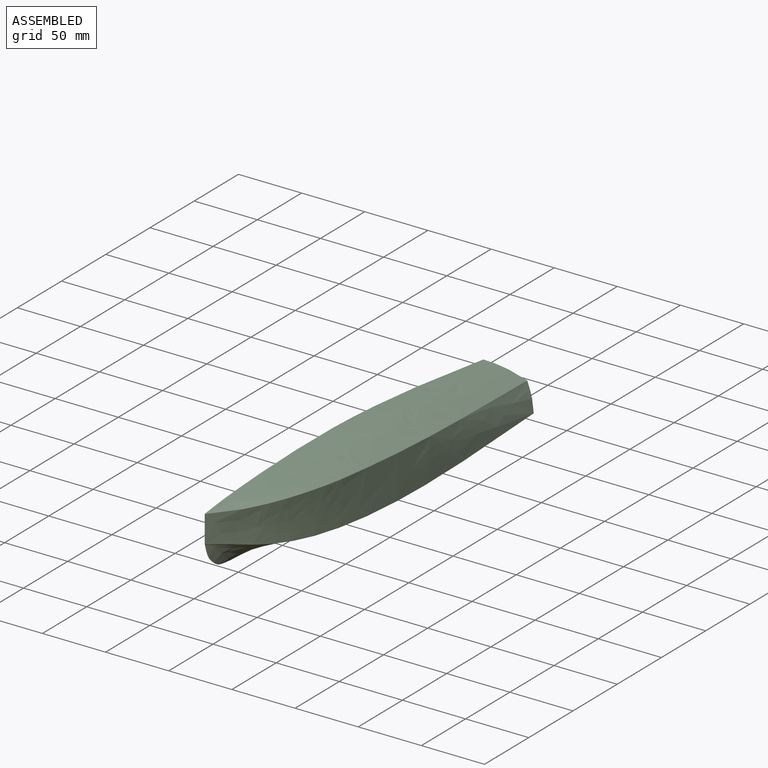
[diagram: assembled view]
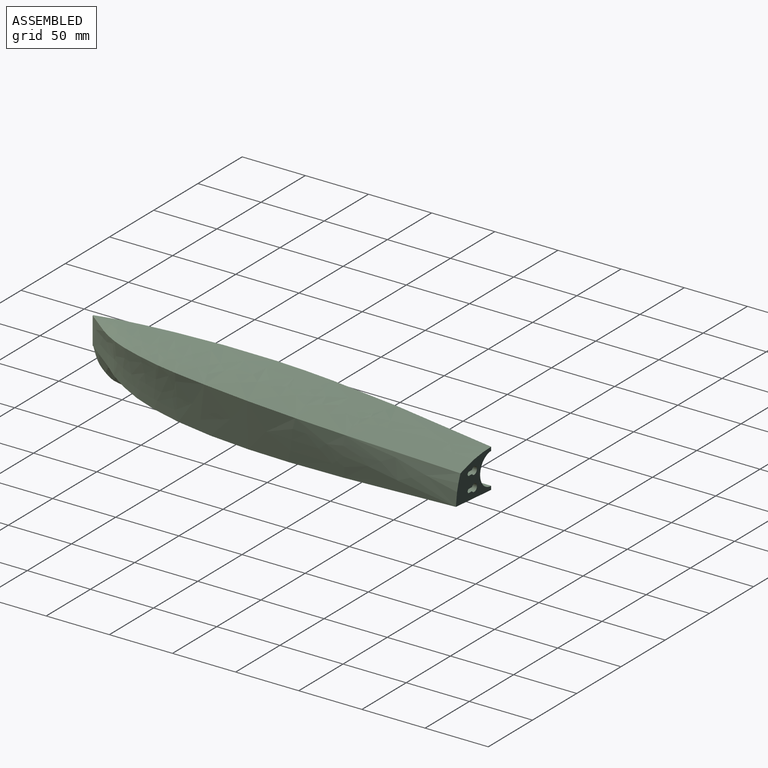
[diagram: assembled view, second angle]
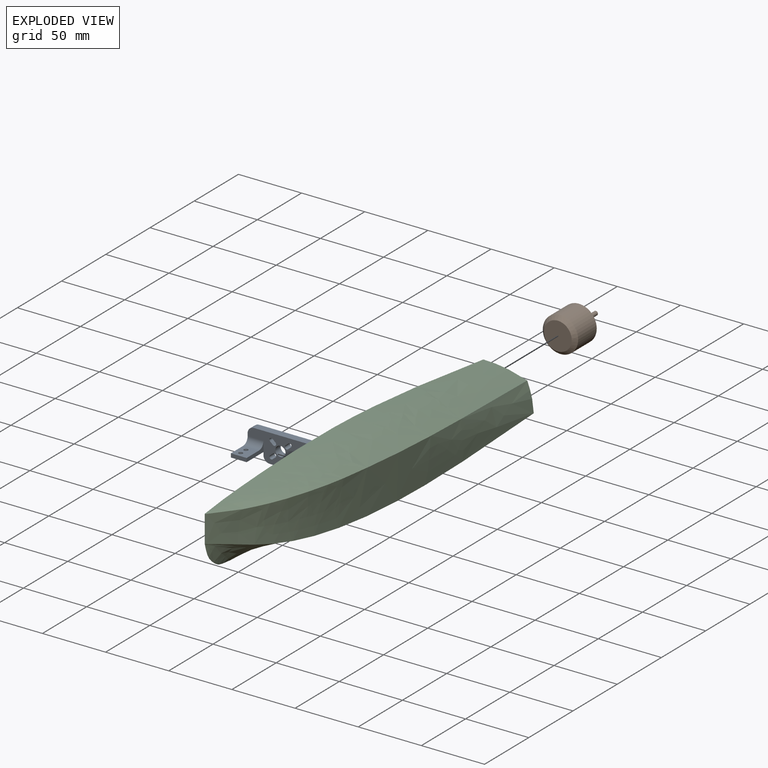
[diagram: exploded view]
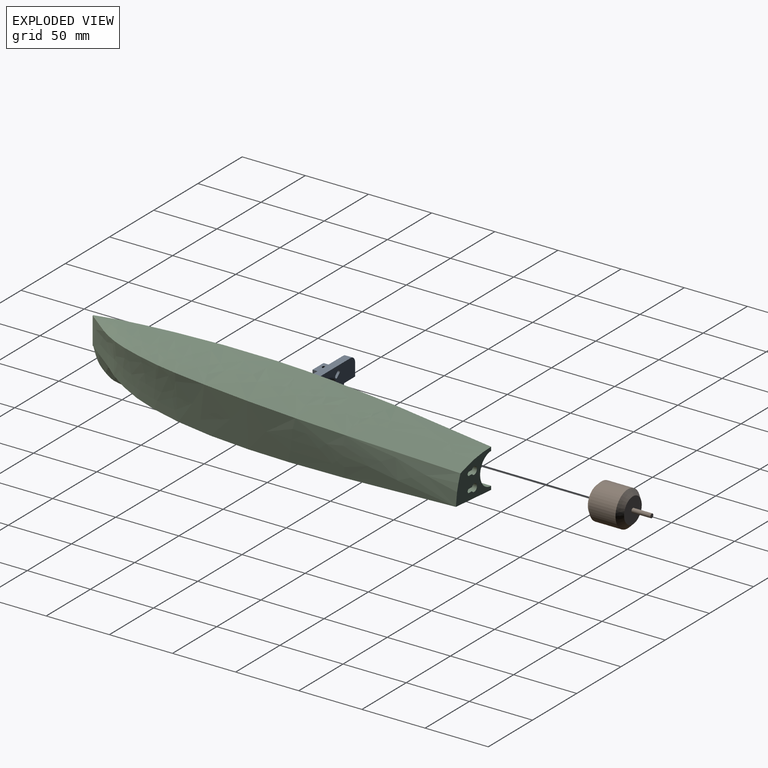
[diagram: exploded view, second angle]
ASSEMBLY  parts=3 mates=3
PART A: 43 faces, bbox 52x22.4x25 mm
  f0: plane 6x2.17mm, normal (1,0,0), area 13mm2, adj f7,f27,f28,f35
  f1: plane 6x2.17mm, normal (-1,0,0), area 13mm2, adj f5,f27,f28,f29
  f2: plane 42x6mm, normal (0,1,0), area 252mm2, adj f3,f21,f27,f28
  f3: cylinder r=5mm len=6mm, axis (0,0,-1), area 47.1mm2, adj f2,f4,f27,f28
  f4: plane 25x10.2mm, normal (-1,0,0), area 123.6mm2, adj f3,f27,f28,f29,f31,f32,f42
  f5: cylinder r=5mm len=6mm, axis (0,0,-1), area 47.1mm2, adj f1,f6,f27,f28
  f6: plane 16.92x6mm, normal (0,-1,0), area 101.5mm2, adj f5,f7,f27,f28
  f7: cylinder r=5mm len=6mm, axis (0,0,-1), area 47.1mm2, adj f0,f6,f27,f28
  f8: plane 25x10.2mm, normal (1,0,0), area 123.6mm2, adj f21,f27,f28,f33,f35,f36,f41
  f9: plane 6x2.29mm, normal (-0.65,-0.76,0), area 18mm2, adj f10,f22,f27,f28
  f10: cylinder r=1.5mm len=6mm, axis (0,0,-1), area 28.3mm2, adj f9,f11,f27,f28
  f11: plane 6x2.29mm, normal (0.65,0.76,0), area 18mm2, adj f10,f22,f27,f28
  f12: plane 6x2.29mm, normal (0.65,-0.76,0), area 18mm2, adj f13,f23,f27,f28
  f13: cylinder r=1.5mm len=6mm, axis (0,0,-1), area 28.3mm2, adj f12,f14,f27,f28
  f14: plane 6x2.29mm, normal (-0.65,0.76,0), area 18mm2, adj f13,f23,f27,f28
  f15: plane 6x2.29mm, normal (-0.65,-0.76,0), area 18mm2, adj f16,f24,f27,f28
  f16: cylinder r=1.5mm len=6mm, axis (0,0,-1), area 28.3mm2, adj f15,f17,f27,f28
  f17: plane 6x2.29mm, normal (0.65,0.76,0), area 18mm2, adj f16,f24,f27,f28
  f18: plane 6x2.29mm, normal (0.65,-0.76,0), area 18mm2, adj f19,f25,f27,f28
  f19: cylinder r=1.5mm len=6mm, axis (0,0,-1), area 28.3mm2, adj f18,f20,f27,f28
  f20: plane 6x2.29mm, normal (-0.65,0.76,0), area 18mm2, adj f19,f25,f27,f28
  f21: cylinder r=5mm len=6mm, axis (0,0,-1), area 47.1mm2, adj f2,f8,f27,f28
  f22: cylinder r=1.5mm len=6mm, axis (0,0,-1), area 28.3mm2, adj f9,f11,f27,f28
  f23: cylinder r=1.5mm len=6mm, axis (0,0,-1), area 28.3mm2, adj f12,f14,f27,f28
  f24: cylinder r=1.5mm len=6mm, axis (0,0,-1), area 28.3mm2, adj f15,f17,f27,f28
  f25: cylinder r=1.5mm len=6mm, axis (0,0,-1), area 28.3mm2, adj f18,f20,f27,f28
  f26: cylinder r=4mm len=8mm, axis (0,0,-1), area 150.8mm2, adj f27,f28
  f27: plane 52x22.37mm, normal (0,0,1), area 646.8mm2, adj f0,f1,f2,f3,f4,f5,f6,f7
  f28: plane 52x22.37mm, normal (0,0,-1), area 847.4mm2, adj f0,f1,f2,f3,f4,f5,f6,f7
  f29: plane 25x12.54mm, normal (0,-1,0), area 297.4mm2, adj f1,f4,f28,f30,f32,f39,f40
  f30: plane 19x8mm, normal (1,0,0), area 62.4mm2, adj f27,f29,f31,f32,f42
  f31: plane 14x12.54mm, normal (0,1,0), area 159.5mm2, adj f4,f30,f32,f39,f40,f42
  f32: plane 12.54x3mm, normal (0,0,1), area 37.6mm2, adj f4,f29,f30,f31
  f33: plane 14x12.54mm, normal (0,1,0), area 159.5mm2, adj f8,f34,f36,f37,f38,f41
  f34: plane 19x8mm, normal (-1,0,0), area 62.4mm2, adj f27,f33,f35,f36,f41
  f35: plane 25x12.54mm, normal (0,-1,0), area 297.4mm2, adj f0,f8,f28,f34,f36,f37,f38
  f36: plane 12.54x3mm, normal (0,0,1), area 37.6mm2, adj f8,f33,f34,f35
  f37: cylinder r=1.6mm len=3.2mm, axis (0,1,0), area 30.2mm2, adj f33,f35
  f38: cylinder r=1.6mm len=3.2mm, axis (0,1,0), area 30.2mm2, adj f33,f35
  f39: cylinder r=1.6mm len=3.2mm, axis (0,1,0), area 30.2mm2, adj f29,f31
  f40: cylinder r=1.6mm len=3.2mm, axis (0,1,0), area 30.2mm2, adj f29,f31
  f41: cylinder r=5mm len=12.54mm, axis (-1,0,0), area 98.5mm2, adj f8,f27,f33,f34
  f42: cylinder r=5mm len=12.54mm, axis (-1,0,0), area 98.5mm2, adj f4,f27,f30,f31
PART B: 7 faces, bbox 28x28x43 mm
  f0: plane 22x22mm, normal (0,0,-1), area 380.1mm2, adj f6
  f1: cylinder r=14mm len=28mm, axis (0,0,-1), area 1847.3mm2, adj f5,f6
  f2: plane 20x20mm, normal (0,0,1), area 305.7mm2, adj f3,f5
  f3: cylinder r=1.64mm len=15mm, axis (0,0,-1), area 154.6mm2, adj f2,f4
  f4: plane 3.28x3.28mm, normal (0,0,1), area 8.4mm2, adj f3
  f5: cone r=14mm half-angle=45deg, axis (0,0,-1), area 426.5mm2, adj f1,f2
  f6: cone r=11mm half-angle=45deg, axis (0,0,1), area 333.2mm2, adj f0,f1
PART C: 69 faces, bbox 60.9x321x69.7 mm
  f0: plane 9x6mm, normal (0,-1,0), area 26.9mm2, adj f40,f41,f42,f43,f56,f57,f63
  f1: plane 29.35x25.14mm, normal (0,-1,0), area 242.1mm2, adj f3,f16,f17,f22,f48,f49,f50,f51
  f2: plane 9x6mm, normal (0,-1,0), area 26.9mm2, adj f44,f45,f46,f47,f52,f53,f54
  f3: offset ~302.51x50.79mm, area 9557.7mm2, adj f1,f5,f6,f17,f18,f19,f21,f22
  f4: cylinder r=1.75mm len=6mm, axis (0,1,0), area 33mm2, adj f5,f28,f30
  f5: plane 320.08x57.08mm, normal (-1,0,0), area 2235.3mm2, adj f3,f4,f6,f8,f9,f10,f12,f13
  f6: plane 22.87x7.61mm, normal (0,-1,0), area 116.6mm2, adj f3,f5,f25,f26,f27
  f7: plane 62.46x8.04mm, normal (-1,0,0), area 196mm2, adj f8,f10,f23,f24
  f8: plane 40.52x31.49mm, normal (0,1,0), area 697.9mm2, adj f5,f7,f9,f10,f11,f24,f40,f41
  f9: bspline ~295x45.98mm, area 12186.9mm2, adj f5,f8,f11,f15
  f10: bspline ~295x44.79mm, area 11685.1mm2, adj f5,f7,f8,f11,f13,f23
  f11: bspline ~295x40.43mm, area 9631.9mm2, adj f8,f9,f10,f14
  f12: plane 21.75x0.75mm, normal (0,-1,0), area 16.2mm2, adj f5,f13,f14,f15
  f13: bspline ~21.85x20mm, area 326.6mm2, adj f5,f10,f12,f14
  f14: bspline ~26.56x20.22mm, area 567.7mm2, adj f11,f12,f13,f15
  f15: bspline ~20.34x16.46mm, area 176mm2, adj f5,f9,f12,f14
  f16: offset ~303.1x51.98mm, area 11029.1mm2, adj f1,f5,f17,f19,f20,f22,f55
  f17: offset ~303.1x46.2mm, area 8048.1mm2, adj f1,f3,f16,f19
  f18: offset ~25.95x23.19mm, area 128.2mm2, adj f3,f5,f19
  f19: offset ~30.63x26.22mm, area 427.3mm2, adj f3,f5,f16,f17,f18,f20
  f20: offset ~26.34x20.43mm, area 77.3mm2, adj f5,f16,f19
  f21: torus R=55.49mm, axis (1,0,0), area 1484.7mm2, adj f3,f5,f22,f25,f26
  f22: cylinder r=15mm len=37mm, axis (0,-1,0), area 1339.4mm2, adj f1,f3,f5,f16,f21
  f23: torus R=55.49mm, axis (1,0,0), area 1645.5mm2, adj f5,f7,f10,f24,f29
  f24: cylinder r=12.5mm len=40mm, axis (0,-1,0), area 1570.8mm2, adj f5,f7,f8,f23
  f25: plane 19.88x14.51mm, normal (1,0,0), area 170.3mm2, adj f3,f6,f21,f26
  f26: cylinder r=7.5mm len=28.36mm, axis (0,-1,0), area 284.1mm2, adj f5,f6,f21,f25
  f27: cylinder r=5mm len=10mm, axis (0,-1,0), area 62.8mm2, adj f5,f6,f28
  f28: plane 10x5mm, normal (0,-1,0), area 34.5mm2, adj f4,f5,f27
  f29: cylinder r=5mm len=18.96mm, axis (0,1,0), area 184mm2, adj f5,f23,f30
  f30: plane 10x5mm, normal (0,1,0), area 34.5mm2, adj f4,f5,f29
  f31: plane 42.25x10mm, normal (-1,0,0), area 335mm2, adj f3,f33,f34,f35
  f32: plane 39.74x8.51mm, normal (1,0,0), area 269.7mm2, adj f3,f33,f34,f35
  f33: plane 10.01x9.86mm, normal (0,-1,0), area 89.6mm2, adj f3,f31,f32,f35
  f34: plane 17.27x10.03mm, normal (0,0.5,0.87), area 184.7mm2, adj f3,f31,f32,f35
  f35: plane 25x10mm, normal (0,0,1), area 237.7mm2, adj f31,f32,f33,f34,f36,f38
  f36: cylinder r=1.4mm len=10mm, axis (0,0,1), area 88mm2, adj f35,f37
  f37: plane 2.8x2.8mm, normal (0,0,1), area 6.2mm2, adj f36
  f38: cylinder r=1.4mm len=10mm, axis (0,0,1), area 88mm2, adj f35,f39
  f39: plane 2.8x2.8mm, normal (0,0,1), area 6.2mm2, adj f38
  f40: cylinder r=1.5mm len=3mm, axis (0,1,0), area 14.1mm2, adj f0,f8,f41,f43
  f41: plane 3.4x3mm, normal (0,0,1), area 10.2mm2, adj f0,f8,f40,f42
  f42: cylinder r=3mm len=6mm, axis (0,1,0), area 75.4mm2, adj f0,f8,f41,f43,f56,f63,f67
  f43: plane 3.4x3mm, normal (0,0,-1), area 10.2mm2, adj f0,f8,f40,f42
  f44: cylinder r=1.5mm len=3mm, axis (0,1,0), area 14.1mm2, adj f2,f8,f45,f47
  f45: plane 3.4x3mm, normal (0,0,1), area 10.2mm2, adj f2,f8,f44,f46
  f46: cylinder r=3mm len=6mm, axis (0,1,0), area 75.4mm2, adj f2,f8,f45,f47,f52,f53,f64
  f47: plane 3.4x3mm, normal (0,0,-1), area 10.2mm2, adj f2,f8,f44,f46
  f48: plane 6x6mm, normal (0,0,1), area 36mm2, adj f1,f49,f55,f65,f66
  f49: cylinder r=4mm len=8mm, axis (0,1,0), area 75.4mm2, adj f1,f48,f50,f66
  f50: plane 10x6mm, normal (0,0,-1), area 60mm2, adj f1,f49,f51,f66
  f51: plane 6.89x6mm, normal (1,0,0), area 41.3mm2, adj f1,f50,f55,f65,f66
  f52: plane 9x3mm, normal (0,0,1), area 27mm2, adj f2,f46,f54,f64
  f53: plane 9x3mm, normal (0,0,-1), area 27mm2, adj f2,f46,f54,f64
  f54: plane 6x3mm, normal (-1,0,0), area 18mm2, adj f2,f52,f53,f64
  f55: extruded ~4x3mm, area 12.5mm2, adj f16,f48,f51,f65
  f56: plane 9x3mm, normal (0,0,-1), area 27mm2, adj f0,f42,f57,f67
  f57: plane 6x3mm, normal (-1,0,0), area 18mm2, adj f0,f56,f63,f67
  f58: cylinder r=4mm len=8mm, axis (0,1,0), area 75.4mm2, adj f1,f59,f62,f68
  f59: plane 6x5.99mm, normal (0,0,-1), area 36mm2, adj f1,f58,f60,f68
  f60: extruded ~6x4.01mm, area 24.1mm2, adj f3,f59,f61,f68
  f61: plane 7.69x6mm, normal (1,0,0), area 46.1mm2, adj f1,f60,f62,f68
  f62: plane 10x6mm, normal (0,0,1), area 60mm2, adj f1,f58,f61,f68
  f63: plane 9x3mm, normal (0,0,1), area 27mm2, adj f0,f42,f57,f67
  f64: plane 12x6mm, normal (0,1,0), area 68.1mm2, adj f46,f52,f53,f54
  f65: extruded ~4x3mm, area 12.5mm2, adj f48,f51,f55,f66
  f66: plane 14x8mm, normal (0,-1,0), area 102.9mm2, adj f48,f49,f50,f51,f65
  f67: plane 12x6mm, normal (0,1,0), area 68.1mm2, adj f42,f56,f57,f63
  f68: plane 14x8mm, normal (0,-1,0), area 104.5mm2, adj f58,f59,f60,f61,f62
PLACE A rot(axis=(1,0,0),90deg) t=(-10.2,179.29,-76.44)mm
PLACE B rot(axis=(-1,0,0),90deg) t=(-7.11,179.29,-76.06)mm
PLACE C t=(-7.11,17.29,-70.28)mm
MATE cylindrical A.f38 <-> C.f38  axis (0,0,-1) through (13.89,158.29,-80.07)mm
MATE cylindrical B.f1 <-> C.f4  axis (0,1,0) through (-7.11,222.29,-76.06)mm
MATE revolute A.f26 <-> B.f1  axis (0,1,0) through (-7.11,179.29,-76.06)mm
